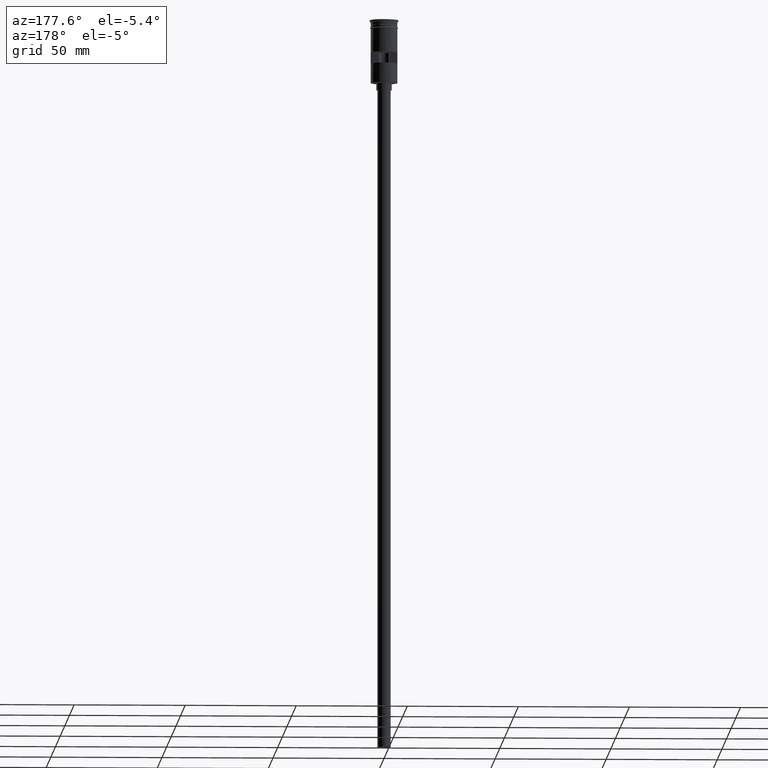
[diagram: clean part render]
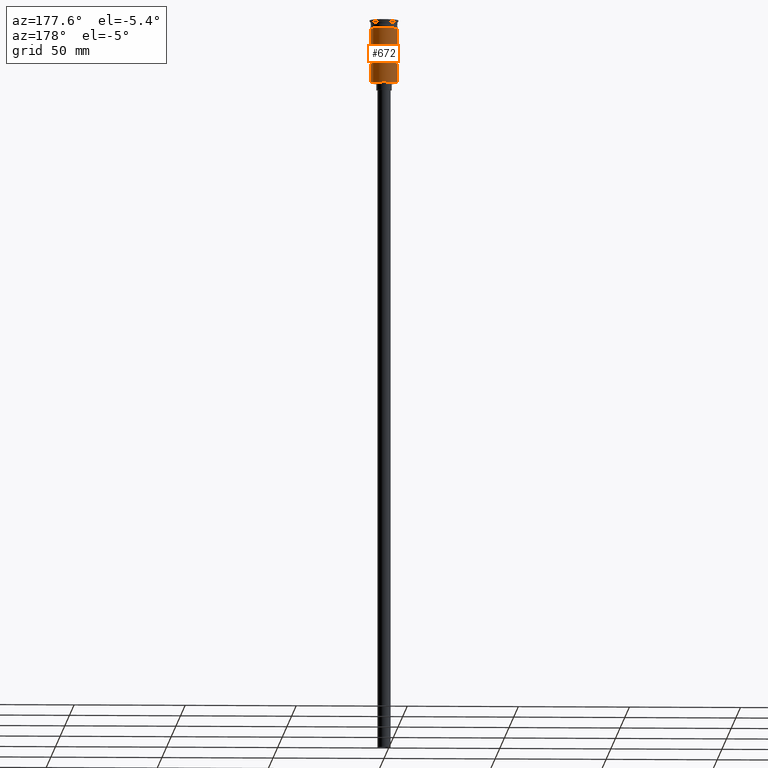
[diagram: same view with one face highlighted and labeled with its STEP entity id]
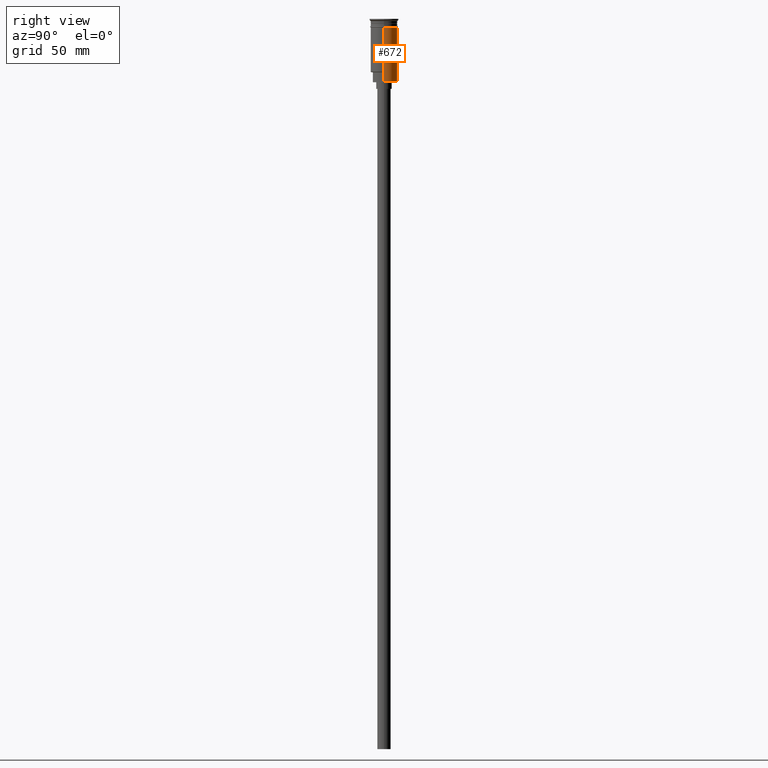
[diagram: same view with one face highlighted and labeled with its STEP entity id]
A machine part, auxiliary view. The second image highlights one B-rep face of the part: STEP entity #672.
A second angle (right view) of the same face is appended — the face is thin or edge-on in the first view.
In plain terms, the highlighted cylindrical surface (edge-blend (fillet) strip) has radius 6 mm, axis along (-0, -0, 1).
Its self-contained STEP definition (entity closure, byte-faithful):
#9 = ORIENTED_EDGE ( 'NONE', *, *, #1446, .T. ) ;
#42 = ORIENTED_EDGE ( 'NONE', *, *, #1419, .F. ) ;
#53 = CARTESIAN_POINT ( 'NONE',  ( 5.999999999999997335, 7.347880794884115792E-16, -23.79999999999995453 ) ) ;
#57 = AXIS2_PLACEMENT_3D ( 'NONE', #338, #946, #1308 ) ;
#63 = ORIENTED_EDGE ( 'NONE', *, *, #923, .F. ) ;
#83 = CYLINDRICAL_SURFACE ( 'NONE', #57, 5.999999999999997335 ) ;
#122 = CARTESIAN_POINT ( 'NONE',  ( 0.000000000000000000, 0.000000000000000000, -3.799999999999998490 ) ) ;
#151 = CARTESIAN_POINT ( 'NONE',  ( 5.999999999999994671, 7.347880794884112834E-16, -28.50000000000000000 ) ) ;
#152 = CARTESIAN_POINT ( 'NONE',  ( 5.999999999999994671, 7.347880794884112834E-16, -28.29999999999999716 ) ) ;
#175 = CARTESIAN_POINT ( 'NONE',  ( 0.000000000000000000, 0.000000000000000000, -19.50000000000000355 ) ) ;
#188 = AXIS2_PLACEMENT_3D ( 'NONE', #175, #680, #1269 ) ;
#197 = CARTESIAN_POINT ( 'NONE',  ( 5.969924622639712908, 0.5999999999999999778, -19.50000000000000355 ) ) ;
#198 = EDGE_CURVE ( 'NONE', #1017, #1513, #1556, .T. ) ;
#200 = FACE_BOUND ( 'NONE', #993, .T. ) ;
#203 = CARTESIAN_POINT ( 'NONE',  ( 6.000000000000000000, 0.000000000000000000, -3.799999999999998490 ) ) ;
#218 = VECTOR ( 'NONE', #782, 1000.000000000000000 ) ;
#243 = CIRCLE ( 'NONE', #188, 5.999999999999997335 ) ;
#257 = VERTEX_POINT ( 'NONE', #203 ) ;
#289 = CARTESIAN_POINT ( 'NONE',  ( -5.999999999999994671, 0.000000000000000000, -28.50000000000000000 ) ) ;
#298 = CIRCLE ( 'NONE', #1447, 6.000000000000000000 ) ;
#315 = ORIENTED_EDGE ( 'NONE', *, *, #1237, .F. ) ;
#322 = CARTESIAN_POINT ( 'NONE',  ( 0.000000000000000000, 0.000000000000000000, -28.29999999999999716 ) ) ;
#338 = CARTESIAN_POINT ( 'NONE',  ( 0.000000000000000000, 0.000000000000000000, 0.000000000000000000 ) ) ;
#429 = CARTESIAN_POINT ( 'NONE',  ( 5.999999999999997335, 0.000000000000000000, 0.000000000000000000 ) ) ;
#442 = CARTESIAN_POINT ( 'NONE',  ( -5.999999999999994671, 0.000000000000000000, -28.29999999999999716 ) ) ;
#457 = FACE_OUTER_BOUND ( 'NONE', #1064, .T. ) ;
#461 = DIRECTION ( 'NONE',  ( 0.000000000000000000, 0.000000000000000000, -1.000000000000000000 ) ) ;
#474 = VECTOR ( 'NONE', #1418, 1000.000000000000000 ) ;
#482 = CARTESIAN_POINT ( 'NONE',  ( 5.969924622639712908, 0.5999999999999999778, -14.49999999999999822 ) ) ;
#483 = VERTEX_POINT ( 'NONE', #1078 ) ;
#494 = EDGE_CURVE ( 'NONE', #829, #1389, #908, .T. ) ;
#535 = VERTEX_POINT ( 'NONE', #1518 ) ;
#540 = ORIENTED_EDGE ( 'NONE', *, *, #1405, .F. ) ;
#562 = CARTESIAN_POINT ( 'NONE',  ( 5.969924622639716461, 0.5999999999999997558, 0.000000000000000000 ) ) ;
#578 = DIRECTION ( 'NONE',  ( -1.000000000000000000, 0.000000000000000000, 0.000000000000000000 ) ) ;
#605 = DIRECTION ( 'NONE',  ( 1.000000000000000000, 0.000000000000000000, 0.000000000000000000 ) ) ;
#612 = DIRECTION ( 'NONE',  ( -0.000000000000000000, -0.000000000000000000, 1.000000000000000000 ) ) ;
#640 = VERTEX_POINT ( 'NONE', #53 ) ;
#664 = VERTEX_POINT ( 'NONE', #482 ) ;
#672 = ADVANCED_FACE ( 'NONE', ( #200, #457 ), #83, .T. ) ;
#678 = VECTOR ( 'NONE', #1497, 1000.000000000000000 ) ;
#680 = DIRECTION ( 'NONE',  ( 0.000000000000000000, 0.000000000000000000, 1.000000000000000000 ) ) ;
#689 = CARTESIAN_POINT ( 'NONE',  ( -5.969924622639716461, 0.5999999999999997558, 0.000000000000000000 ) ) ;
#690 = EDGE_CURVE ( 'NONE', #1389, #664, #757, .T. ) ;
#692 = CARTESIAN_POINT ( 'NONE',  ( -5.999999999999997335, 7.347880794884116778E-16, 0.000000000000000000 ) ) ;
#725 = CARTESIAN_POINT ( 'NONE',  ( -5.969924622639716461, 0.5999999999999997558, -19.50000000000000355 ) ) ;
#757 = CIRCLE ( 'NONE', #1213, 5.999999999999997335 ) ;
#778 = ORIENTED_EDGE ( 'NONE', *, *, #690, .F. ) ;
#782 = DIRECTION ( 'NONE',  ( -0.000000000000000000, -0.000000000000000000, 1.000000000000000000 ) ) ;
#801 = ORIENTED_EDGE ( 'NONE', *, *, #1188, .F. ) ;
#807 = LINE ( 'NONE', #692, #988 ) ;
#829 = VERTEX_POINT ( 'NONE', #725 ) ;
#891 = LINE ( 'NONE', #429, #678 ) ;
#898 = CARTESIAN_POINT ( 'NONE',  ( -5.969924622639716461, 0.5999999999999999778, -14.49999999999999822 ) ) ;
#908 = LINE ( 'NONE', #689, #474 ) ;
#923 = EDGE_CURVE ( 'NONE', #1576, #829, #243, .T. ) ;
#946 = DIRECTION ( 'NONE',  ( -0.000000000000000000, -0.000000000000000000, 1.000000000000000000 ) ) ;
#988 = VECTOR ( 'NONE', #1568, 1000.000000000000000 ) ;
#993 = EDGE_LOOP ( 'NONE', ( #801, #778, #1221, #63 ) ) ;
#1017 = VERTEX_POINT ( 'NONE', #152 ) ;
#1062 = DIRECTION ( 'NONE',  ( -0.000000000000000000, -3.212450881438533227E-16, -1.000000000000000000 ) ) ;
#1064 = EDGE_LOOP ( 'NONE', ( #9, #1146, #315, #42, #540, #1577 ) ) ;
#1078 = CARTESIAN_POINT ( 'NONE',  ( -5.999999999999994671, 0.000000000000000000, -23.79999999999995453 ) ) ;
#1087 = DIRECTION ( 'NONE',  ( 0.000000000000000000, -1.000000000000000000, 2.891205793294679805E-16 ) ) ;
#1111 = AXIS2_PLACEMENT_3D ( 'NONE', #322, #1196, #578 ) ;
#1146 = ORIENTED_EDGE ( 'NONE', *, *, #1528, .T. ) ;
#1164 = VECTOR ( 'NONE', #1255, 1000.000000000000000 ) ;
#1177 = LINE ( 'NONE', #562, #1232 ) ;
#1188 = EDGE_CURVE ( 'NONE', #664, #1576, #1177, .T. ) ;
#1196 = DIRECTION ( 'NONE',  ( 0.000000000000000000, 0.000000000000000000, 1.000000000000000000 ) ) ;
#1199 = CARTESIAN_POINT ( 'NONE',  ( 0.000000000000000000, 0.000000000000000000, -14.49999999999999822 ) ) ;
#1213 = AXIS2_PLACEMENT_3D ( 'NONE', #1199, #1062, #1087 ) ;
#1221 = ORIENTED_EDGE ( 'NONE', *, *, #494, .F. ) ;
#1232 = VECTOR ( 'NONE', #461, 1000.000000000000000 ) ;
#1237 = EDGE_CURVE ( 'NONE', #257, #535, #298, .T. ) ;
#1255 = DIRECTION ( 'NONE',  ( -0.000000000000000000, -0.000000000000000000, 1.000000000000000000 ) ) ;
#1269 = DIRECTION ( 'NONE',  ( -1.000000000000000000, 0.000000000000000000, 0.000000000000000000 ) ) ;
#1308 = DIRECTION ( 'NONE',  ( 1.000000000000000000, 0.000000000000000000, 0.000000000000000000 ) ) ;
#1381 = LINE ( 'NONE', #151, #1164 ) ;
#1388 = LINE ( 'NONE', #289, #218 ) ;
#1389 = VERTEX_POINT ( 'NONE', #898 ) ;
#1405 = EDGE_CURVE ( 'NONE', #1017, #640, #1381, .T. ) ;
#1418 = DIRECTION ( 'NONE',  ( -0.000000000000000000, -0.000000000000000000, 1.000000000000000000 ) ) ;
#1419 = EDGE_CURVE ( 'NONE', #640, #257, #891, .T. ) ;
#1446 = EDGE_CURVE ( 'NONE', #1513, #483, #1388, .T. ) ;
#1447 = AXIS2_PLACEMENT_3D ( 'NONE', #122, #612, #605 ) ;
#1497 = DIRECTION ( 'NONE',  ( -0.000000000000000000, -0.000000000000000000, 1.000000000000000000 ) ) ;
#1513 = VERTEX_POINT ( 'NONE', #442 ) ;
#1518 = CARTESIAN_POINT ( 'NONE',  ( -6.000000000000000000, 7.347880794884119736E-16, -3.799999999999998490 ) ) ;
#1528 = EDGE_CURVE ( 'NONE', #483, #535, #807, .T. ) ;
#1556 = CIRCLE ( 'NONE', #1111, 5.999999999999997335 ) ;
#1568 = DIRECTION ( 'NONE',  ( -0.000000000000000000, -0.000000000000000000, 1.000000000000000000 ) ) ;
#1576 = VERTEX_POINT ( 'NONE', #197 ) ;
#1577 = ORIENTED_EDGE ( 'NONE', *, *, #198, .T. ) ;